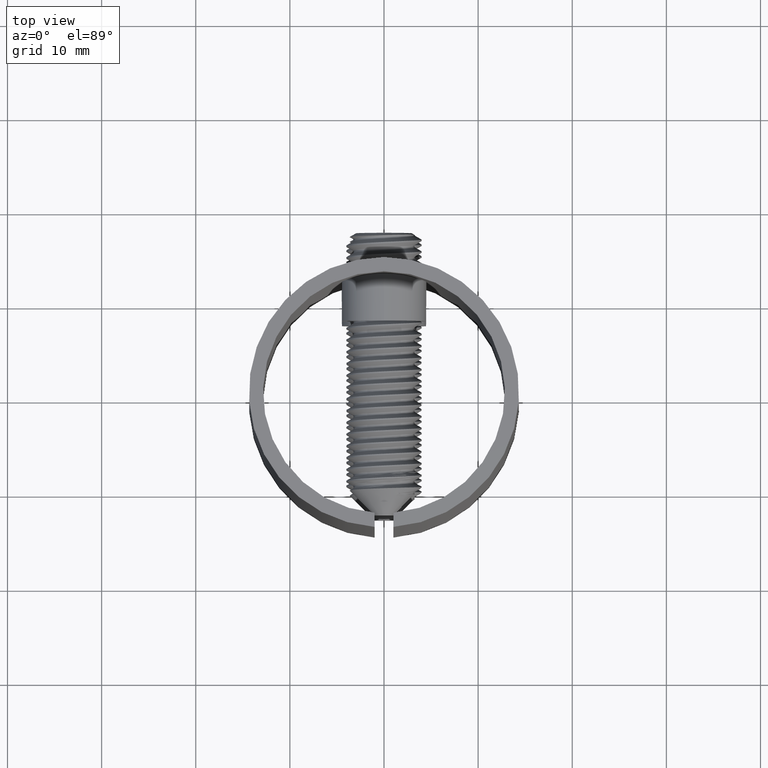
[diagram: clean part render]
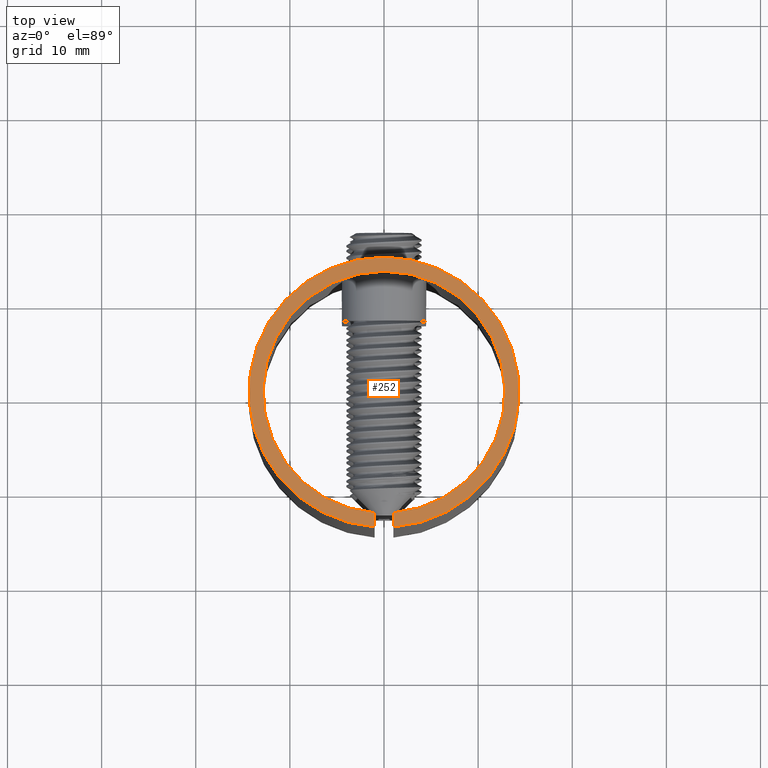
[diagram: same view with one face highlighted and labeled with its STEP entity id]
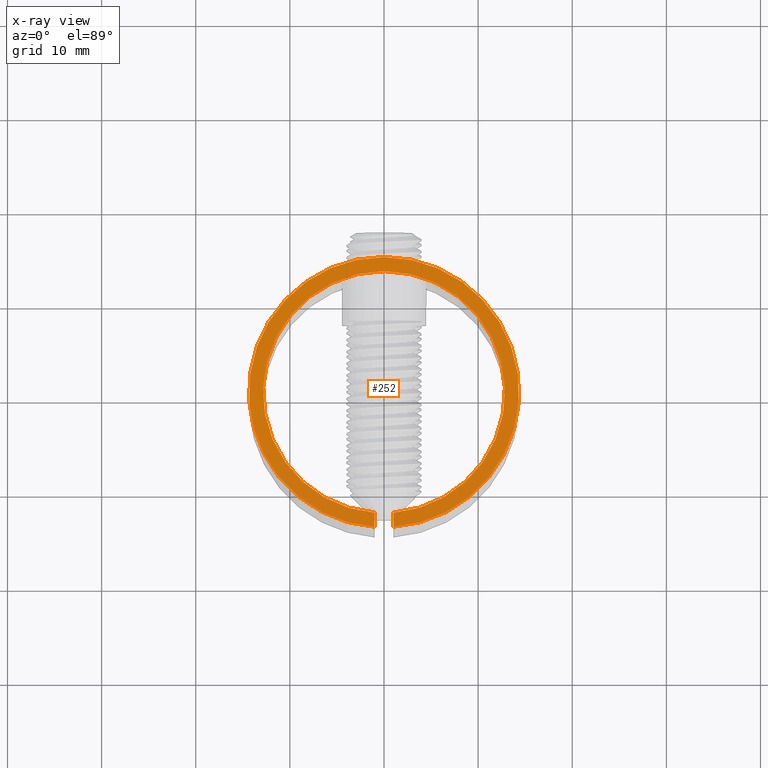
[diagram: x-ray of the same camera — body ghosted, the highlighted face saturated]
A machine part, top view. The second image highlights one B-rep face of the part: STEP entity #252.
The next image is the same camera in x-ray: the body ghosted, the highlighted face saturated — about 0% of this face is hidden behind the body in this view.
In plain terms, the highlighted planar face has unit normal (0, 0, 1).
Its self-contained STEP definition (entity closure, byte-faithful):
#252 = ADVANCED_FACE ( 'NONE', ( #9914 ), #14114, .T. ) ;
#624 = CARTESIAN_POINT ( 'NONE',  ( -1.000000000000000000, -4.350000000000001421, 32.50000000000000000 ) ) ;
#1064 = CARTESIAN_POINT ( 'NONE',  ( 1.000000000000000000, -14.31511439004243691, 32.50000000000000000 ) ) ;
#1079 = CARTESIAN_POINT ( 'NONE',  ( 0.000000000000000000, 0.000000000000000000, 32.50000000000000000 ) ) ;
#1271 = ORIENTED_EDGE ( 'NONE', *, *, #9572, .F. ) ;
#1722 = VECTOR ( 'NONE', #7258, 1000.000000000000000 ) ;
#2652 = DIRECTION ( 'NONE',  ( -0.000000000000000000, -1.000000000000000000, 0.000000000000000000 ) ) ;
#2796 = ORIENTED_EDGE ( 'NONE', *, *, #11120, .F. ) ;
#3079 = CARTESIAN_POINT ( 'NONE',  ( 1.000000000000000222, -12.81103040352336642, 32.50000000000000000 ) ) ;
#3167 = ORIENTED_EDGE ( 'NONE', *, *, #8588, .T. ) ;
#3622 = ORIENTED_EDGE ( 'NONE', *, *, #12567, .T. ) ;
#3921 = CIRCLE ( 'NONE', #7680, 12.84999999999999964 ) ;
#4131 = VERTEX_POINT ( 'NONE', #1064 ) ;
#4794 = CIRCLE ( 'NONE', #11953, 14.35000000000000142 ) ;
#4995 = VERTEX_POINT ( 'NONE', #8529 ) ;
#5567 = EDGE_LOOP ( 'NONE', ( #1271, #2796, #3622, #3167 ) ) ;
#5676 = VERTEX_POINT ( 'NONE', #12152 ) ;
#6302 = DIRECTION ( 'NONE',  ( 1.000000000000000000, 0.000000000000000000, 0.000000000000000000 ) ) ;
#6401 = CARTESIAN_POINT ( 'NONE',  ( 0.000000000000000000, 0.000000000000000000, 32.50000000000000000 ) ) ;
#7258 = DIRECTION ( 'NONE',  ( -0.000000000000000000, -1.000000000000000000, 0.000000000000000000 ) ) ;
#7680 = AXIS2_PLACEMENT_3D ( 'NONE', #6401, #14093, #6302 ) ;
#8063 = DIRECTION ( 'NONE',  ( 1.000000000000000000, 0.000000000000000000, 0.000000000000000000 ) ) ;
#8071 = CARTESIAN_POINT ( 'NONE',  ( 1.000000000000000000, -4.350000000000001421, 32.50000000000000000 ) ) ;
#8529 = CARTESIAN_POINT ( 'NONE',  ( -1.000000000000000000, -14.31511439004243691, 32.50000000000000000 ) ) ;
#8588 = EDGE_CURVE ( 'NONE', #4131, #4995, #4794, .T. ) ;
#9038 = VECTOR ( 'NONE', #2652, 1000.000000000000000 ) ;
#9064 = CARTESIAN_POINT ( 'NONE',  ( 0.000000000000000000, 0.000000000000000000, 32.50000000000000000 ) ) ;
#9572 = EDGE_CURVE ( 'NONE', #5676, #4995, #13993, .T. ) ;
#9772 = DIRECTION ( 'NONE',  ( 0.000000000000000000, 0.000000000000000000, 1.000000000000000000 ) ) ;
#9914 = FACE_OUTER_BOUND ( 'NONE', #5567, .T. ) ;
#10870 = DIRECTION ( 'NONE',  ( 1.000000000000000000, 0.000000000000000000, -0.000000000000000000 ) ) ;
#11120 = EDGE_CURVE ( 'NONE', #11442, #5676, #3921, .T. ) ;
#11442 = VERTEX_POINT ( 'NONE', #3079 ) ;
#11953 = AXIS2_PLACEMENT_3D ( 'NONE', #9064, #12305, #8063 ) ;
#12152 = CARTESIAN_POINT ( 'NONE',  ( -1.000000000000000000, -12.81103040352336286, 32.50000000000000000 ) ) ;
#12305 = DIRECTION ( 'NONE',  ( 0.000000000000000000, 0.000000000000000000, 1.000000000000000000 ) ) ;
#12567 = EDGE_CURVE ( 'NONE', #11442, #4131, #12765, .T. ) ;
#12765 = LINE ( 'NONE', #8071, #9038 ) ;
#12841 = AXIS2_PLACEMENT_3D ( 'NONE', #1079, #9772, #10870 ) ;
#13993 = LINE ( 'NONE', #624, #1722 ) ;
#14093 = DIRECTION ( 'NONE',  ( 0.000000000000000000, 0.000000000000000000, 1.000000000000000000 ) ) ;
#14114 = PLANE ( 'NONE',  #12841 ) ;